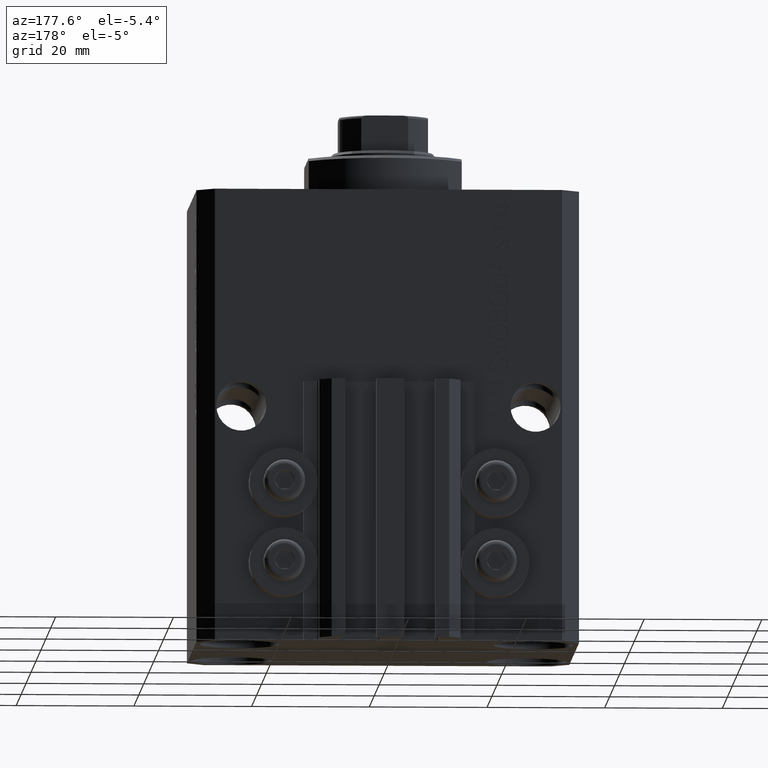
[diagram: clean part render]
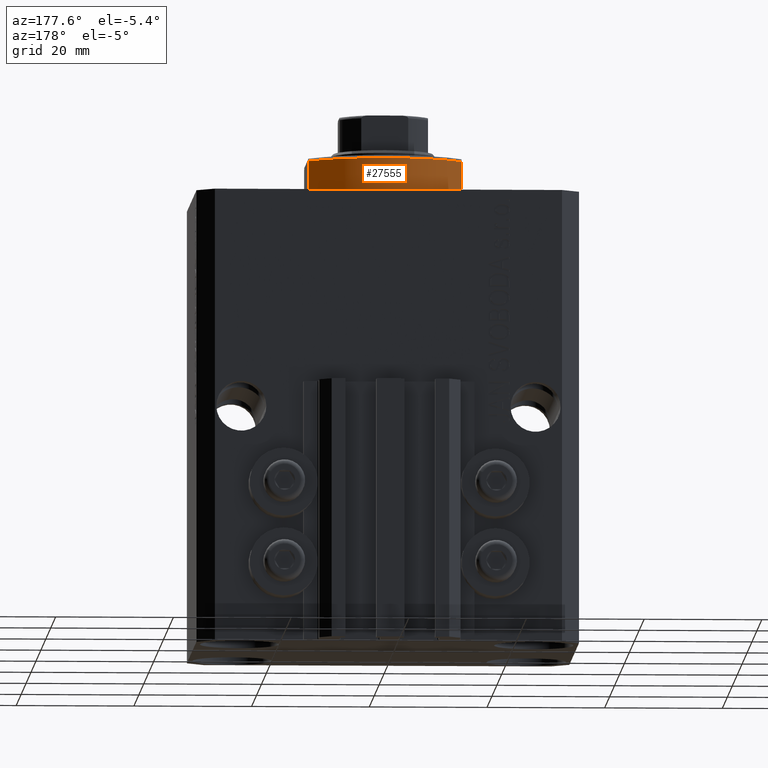
[diagram: same view with one face highlighted and labeled with its STEP entity id]
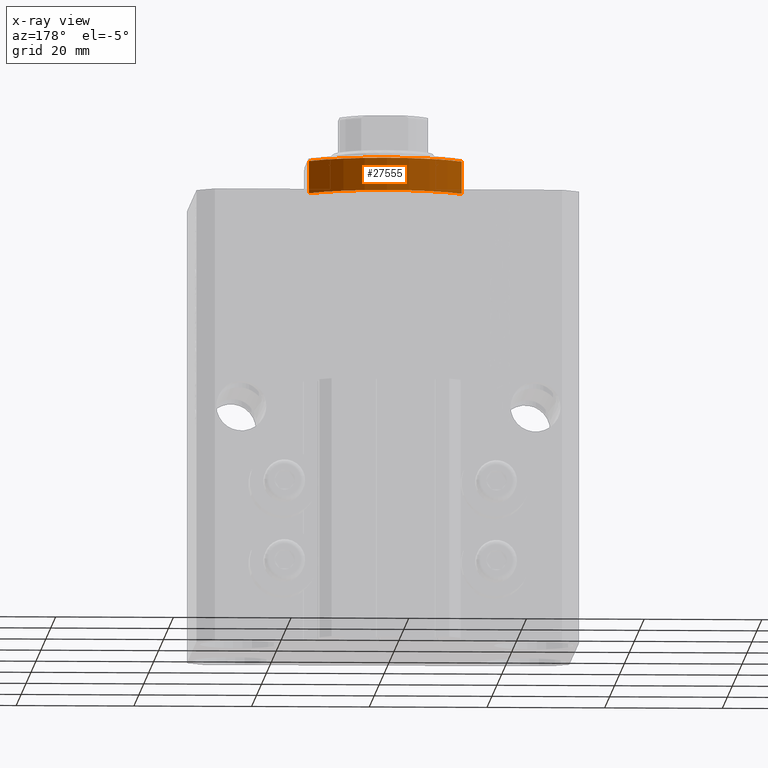
[diagram: x-ray of the same camera — body ghosted, the highlighted face saturated]
A machine part, auxiliary view. The second image highlights one B-rep face of the part: STEP entity #27555.
The next image is the same camera in x-ray: the body ghosted, the highlighted face saturated — about 0% of this face is hidden behind the body in this view.
In plain terms, the highlighted cylindrical surface (partial cylindrical patch) has radius 16 mm, axis along (0, 0, -1).
Its self-contained STEP definition (entity closure, byte-faithful):
#1628 = VERTEX_POINT ( 'NONE', #15612 ) ;
#4938 = DIRECTION ( 'NONE',  ( -0.000000000000000000, -0.000000000000000000, -1.000000000000000000 ) ) ;
#5851 = EDGE_LOOP ( 'NONE', ( #13884, #34432, #24972, #38240 ) ) ;
#7727 = VECTOR ( 'NONE', #29591, 1000.000000000000000 ) ;
#8104 = EDGE_CURVE ( 'NONE', #35493, #36600, #32932, .T. ) ;
#9852 = CARTESIAN_POINT ( 'NONE',  ( -13.00000000000000000, 9.327379053088815652, -0.4999999999999995559 ) ) ;
#9881 = LINE ( 'NONE', #23518, #46376 ) ;
#11882 = EDGE_CURVE ( 'NONE', #1628, #13180, #9881, .T. ) ;
#13134 = FACE_OUTER_BOUND ( 'NONE', #5851, .T. ) ;
#13180 = VERTEX_POINT ( 'NONE', #9852 ) ;
#13688 = AXIS2_PLACEMENT_3D ( 'NONE', #18470, #36351, #14635 ) ;
#13884 = ORIENTED_EDGE ( 'NONE', *, *, #8104, .F. ) ;
#14345 = EDGE_CURVE ( 'NONE', #35493, #1628, #42641, .T. ) ;
#14635 = DIRECTION ( 'NONE',  ( -1.000000000000000000, 0.000000000000000000, 0.000000000000000000 ) ) ;
#14726 = DIRECTION ( 'NONE',  ( -0.000000000000000000, -0.000000000000000000, 1.000000000000000000 ) ) ;
#15612 = CARTESIAN_POINT ( 'NONE',  ( -13.00000000000000000, 9.327379053088916905, -6.000000000000014211 ) ) ;
#15799 = EDGE_CURVE ( 'NONE', #13180, #36600, #31911, .T. ) ;
#18470 = CARTESIAN_POINT ( 'NONE',  ( 0.000000000000000000, 0.000000000000000000, -6.000000000000023981 ) ) ;
#19516 = DIRECTION ( 'NONE',  ( 1.000000000000000000, -8.881784197001252323E-16, 0.000000000000000000 ) ) ;
#23518 = CARTESIAN_POINT ( 'NONE',  ( -13.00000000000000000, 9.327379053088813876, -6.500000000000000000 ) ) ;
#24972 = ORIENTED_EDGE ( 'NONE', *, *, #11882, .T. ) ;
#25783 = CARTESIAN_POINT ( 'NONE',  ( 13.00000000000000000, 9.327379053088813876, -6.500000000000000000 ) ) ;
#27555 = ADVANCED_FACE ( 'NONE', ( #13134 ), #34857, .T. ) ;
#29591 = DIRECTION ( 'NONE',  ( -0.000000000000000000, -0.000000000000000000, 1.000000000000000000 ) ) ;
#31911 = CIRCLE ( 'NONE', #43322, 16.00000000000000000 ) ;
#32932 = LINE ( 'NONE', #25783, #7727 ) ;
#33823 = AXIS2_PLACEMENT_3D ( 'NONE', #42478, #14726, #36211 ) ;
#34432 = ORIENTED_EDGE ( 'NONE', *, *, #14345, .T. ) ;
#34857 = CYLINDRICAL_SURFACE ( 'NONE', #33823, 16.00000000000000000 ) ;
#35493 = VERTEX_POINT ( 'NONE', #45962 ) ;
#36211 = DIRECTION ( 'NONE',  ( 1.000000000000000000, 0.000000000000000000, 0.000000000000000000 ) ) ;
#36351 = DIRECTION ( 'NONE',  ( 0.000000000000000000, 0.000000000000000000, 1.000000000000000000 ) ) ;
#36600 = VERTEX_POINT ( 'NONE', #40235 ) ;
#38240 = ORIENTED_EDGE ( 'NONE', *, *, #15799, .T. ) ;
#40235 = CARTESIAN_POINT ( 'NONE',  ( 13.00000000000000000, 9.327379053088815652, -0.4999999999999995559 ) ) ;
#41456 = CARTESIAN_POINT ( 'NONE',  ( 0.000000000000000000, 0.000000000000000000, -0.4999999999999995559 ) ) ;
#42113 = DIRECTION ( 'NONE',  ( -0.000000000000000000, -0.000000000000000000, 1.000000000000000000 ) ) ;
#42478 = CARTESIAN_POINT ( 'NONE',  ( 0.000000000000000000, 0.000000000000000000, -6.500000000000000000 ) ) ;
#42641 = CIRCLE ( 'NONE', #13688, 16.00000000000000000 ) ;
#43322 = AXIS2_PLACEMENT_3D ( 'NONE', #41456, #4938, #19516 ) ;
#45962 = CARTESIAN_POINT ( 'NONE',  ( 13.00000000000000000, 9.327379053088916905, -6.000000000000014211 ) ) ;
#46376 = VECTOR ( 'NONE', #42113, 1000.000000000000000 ) ;